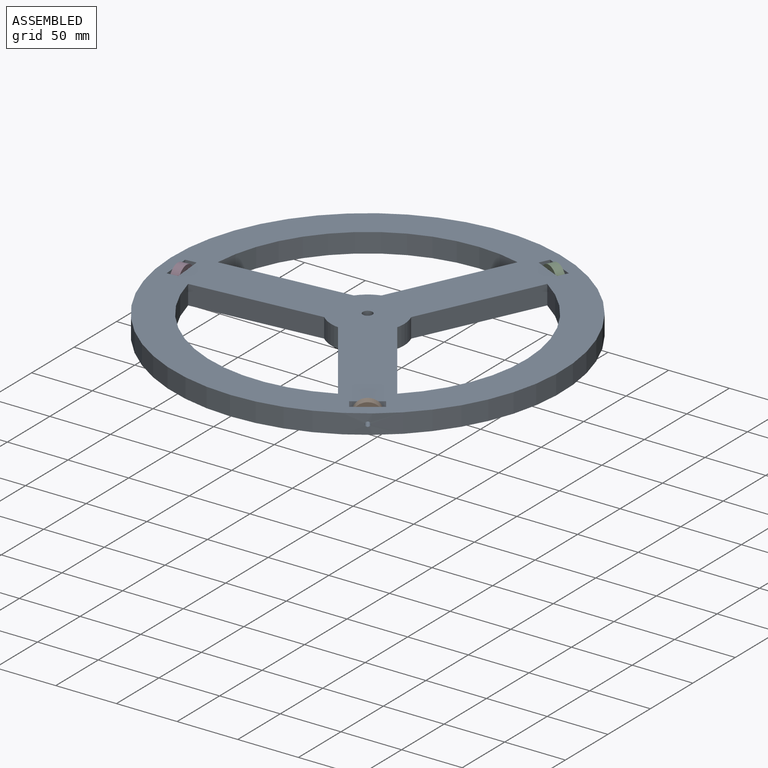
[diagram: assembled view]
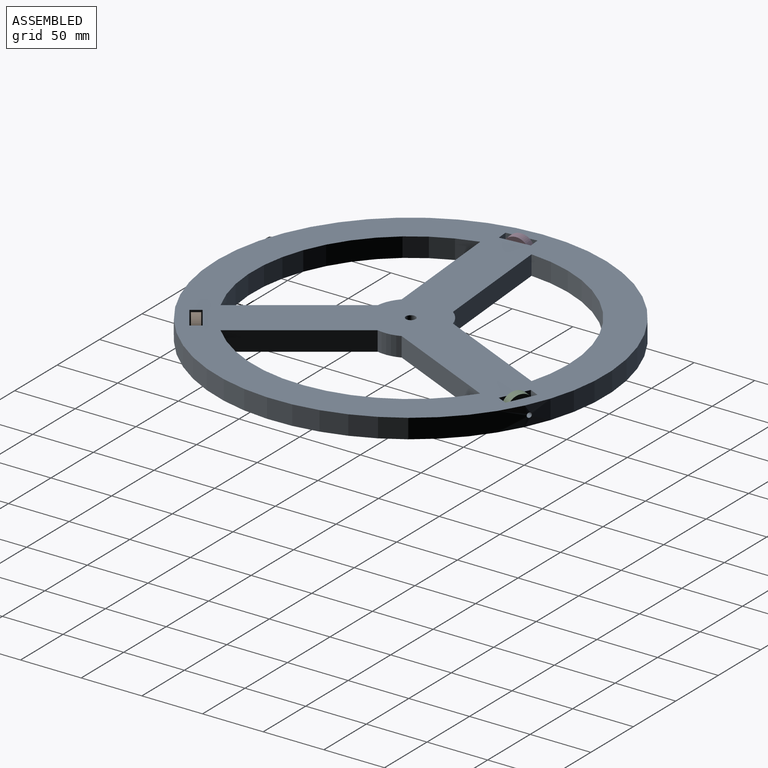
[diagram: assembled view, second angle]
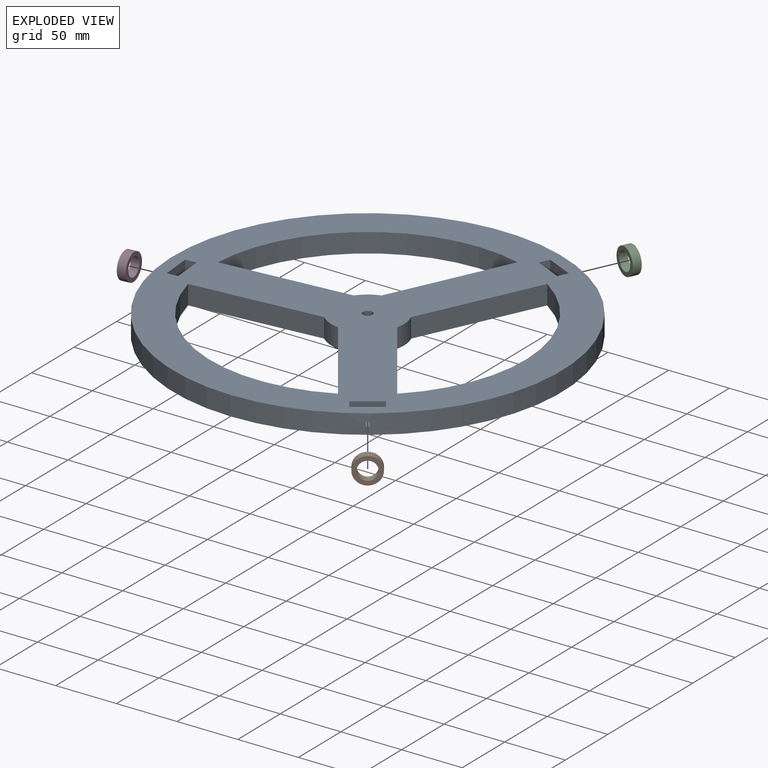
[diagram: exploded view]
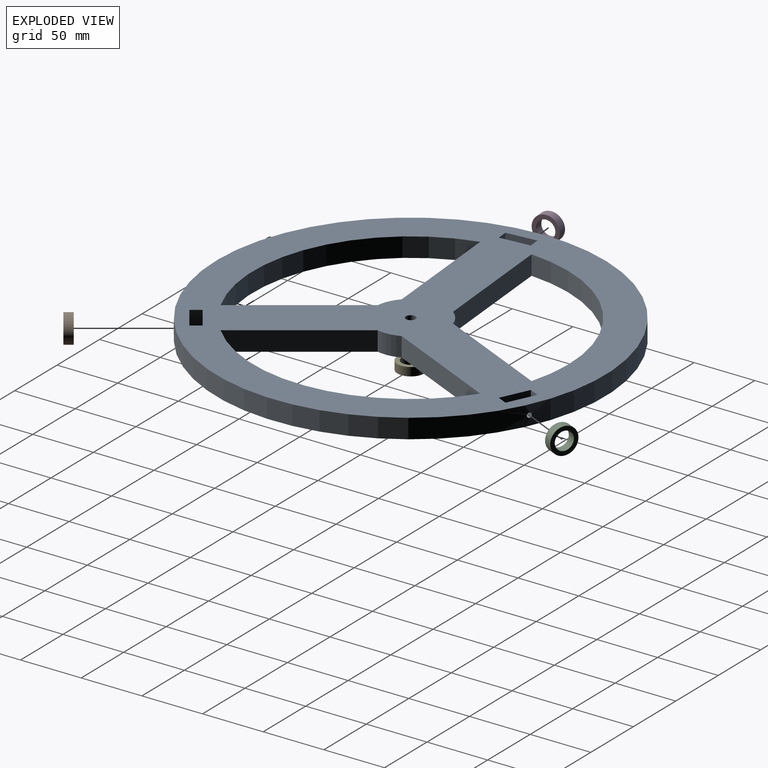
[diagram: exploded view, second angle]
ASSEMBLY  parts=5 mates=4
PART A: 39 faces, bbox 320x16x320 mm
  f0: cylinder r=160mm len=320mm, axis (0,1,0), area 16048.2mm2, adj f26,f27,f32,f35,f38
  f1: cylinder r=4mm len=9mm, axis (0,1,0), area 226.2mm2, adj f27,f29
  f2: plane 16x7.79mm, normal (-0.5,0,0.87), area 144mm2, adj f3,f25,f26,f27
  f3: plane 21.65x16mm, normal (0.87,0,0.5), area 387.4mm2, adj f2,f4,f26,f27,f32
  f4: plane 16x7.79mm, normal (0.5,0,-0.87), area 144mm2, adj f3,f25,f26,f27
  f5: plane 16x7.79mm, normal (-0.5,0,-0.87), area 144mm2, adj f6,f20,f26,f27
  f6: plane 21.65x16mm, normal (-0.87,0,0.5), area 387.4mm2, adj f5,f7,f26,f27,f38
  f7: plane 16x7.79mm, normal (0.5,0,0.87), area 144mm2, adj f6,f20,f26,f27
  f8: plane 91.88x53.05mm, normal (0.5,0,-0.87), area 1697.5mm2, adj f9,f21,f26,f27
  f9: cylinder r=30mm len=18.73mm, axis (0,1,0), area 304.8mm2, adj f8,f10,f26,f27
  f10: plane 91.88x53.05mm, normal (-0.5,0,-0.87), area 1697.5mm2, adj f9,f21,f26,f27
  f11: cylinder r=130mm len=175.36mm, axis (0,1,0), area 3713.8mm2, adj f12,f22,f26,f27
  f12: plane 106.09x16mm, normal (-1,0,0), area 1697.5mm2, adj f11,f13,f26,f27
  f13: cylinder r=30mm len=16.22mm, axis (0,1,0), area 304.8mm2, adj f12,f22,f26,f27
  f14: cylinder r=130mm len=175.36mm, axis (0,1,0), area 3713.8mm2, adj f15,f23,f26,f27
  f15: plane 91.88x53.05mm, normal (0.5,0,0.87), area 1697.5mm2, adj f14,f16,f26,f27
  f16: cylinder r=30mm len=16.22mm, axis (0,1,0), area 304.8mm2, adj f15,f23,f26,f27
  f17: plane 16x9mm, normal (1,0,0), area 144mm2, adj f18,f24,f26,f27
  f18: plane 25x16mm, normal (0,0,-1), area 387.4mm2, adj f17,f19,f26,f27,f35
  f19: plane 16x9mm, normal (-1,0,0), area 144mm2, adj f18,f24,f26,f27
  f20: plane 21.65x16mm, normal (0.87,0,-0.5), area 387.4mm2, adj f5,f7,f26,f27,f37
  f21: cylinder r=130mm len=202.49mm, axis (0,1,0), area 3713.8mm2, adj f8,f10,f26,f27
  f22: plane 91.88x53.05mm, normal (-0.5,0,0.87), area 1697.5mm2, adj f11,f13,f26,f27
  f23: plane 106.09x16mm, normal (1,0,0), area 1697.5mm2, adj f14,f16,f26,f27
  f24: plane 25x16mm, normal (0,0,1), area 387.4mm2, adj f17,f19,f26,f27,f34
  f25: plane 21.65x16mm, normal (-0.87,0,-0.5), area 387.4mm2, adj f2,f4,f26,f27,f31
  f26: plane 320x320mm, normal (0,-1,0), area 41330.5mm2, adj f0,f2,f3,f4,f5,f6,f7,f8
  f27: plane 320x320mm, normal (0,1,0), area 41660.4mm2, adj f0,f1,f2,f3,f4,f5,f6,f7
  f28: cylinder r=11mm len=22mm, axis (0,-1,0), area 483.8mm2, adj f26,f29
  f29: plane 22x22mm, normal (0,-1,0), area 329.9mm2, adj f1,f28
  f30: plane 4x3.46mm, normal (-0.87,0,-0.5), area 12.6mm2, adj f31
  f31: cylinder r=2mm len=23.65mm, axis (0.87,0,0.5), area 314.2mm2, adj f25,f30
  f32: cylinder r=2mm len=11.08mm, axis (0.87,0,0.5), area 131.8mm2, adj f0,f3
  f33: plane 4x4mm, normal (0,0,1), area 12.6mm2, adj f34
  f34: cylinder r=2mm len=25mm, axis (0,0,-1), area 314.2mm2, adj f24,f33
  f35: cylinder r=2mm len=10.5mm, axis (0,0,-1), area 131.9mm2, adj f0,f18
  f36: plane 4x3.46mm, normal (0.87,0,-0.5), area 12.6mm2, adj f37
  f37: cylinder r=2mm len=23.65mm, axis (-0.87,0,0.5), area 314.2mm2, adj f20,f36
  f38: cylinder r=2mm len=11.08mm, axis (-0.87,0,0.5), area 131.8mm2, adj f0,f6
PART B: 4 faces, bbox 22x7x22 mm
  f0: cylinder r=7.5mm len=15mm, axis (0,1,0), area 329.9mm2, adj f2,f3
  f1: cylinder r=11mm len=22mm, axis (0,1,0), area 483.8mm2, adj f2,f3
  f2: plane 22x22mm, normal (0,-1,0), area 203.4mm2, adj f0,f1
  f3: plane 22x22mm, normal (0,1,0), area 203.4mm2, adj f0,f1
PART C: same geometry as B
PART D: same geometry as B
PART E: same geometry as B
PLACE A rot(axis=(0.61,-0.56,-0.56),117.2deg) t=(-280.94,-60.06,357.79)mm
PLACE B rot(axis=(0.95,0.3,0),180deg) t=(-195.77,-181.7,349.79)mm
PLACE C rot(axis=(0,0,-1),25deg) t=(-218.18,74.53,349.79)mm
PLACE D rot(axis=(0,0,-1),85deg) t=(-421.9,-72.39,349.79)mm
PLACE E rot(axis=(-0.61,0.56,-0.56),117.2deg) t=(-280.94,-60.06,341.79)mm
MATE fastened A.f31 <-> C.f1  axis (-0.42,-0.91,0) through (-221.56,67.28,349.79)mm
MATE fastened A.f34 <-> D.f0  axis (-1,-0.09,0) through (-420.91,-72.31,349.79)mm
MATE fastened B.f0 <-> A.f37  axis (-0.57,0.82,0) through (-199.78,-175.97,349.79)mm
MATE fastened E.f1 <-> A.f28  axis (0,0,1) through (-280.94,-60.06,348.79)mm
